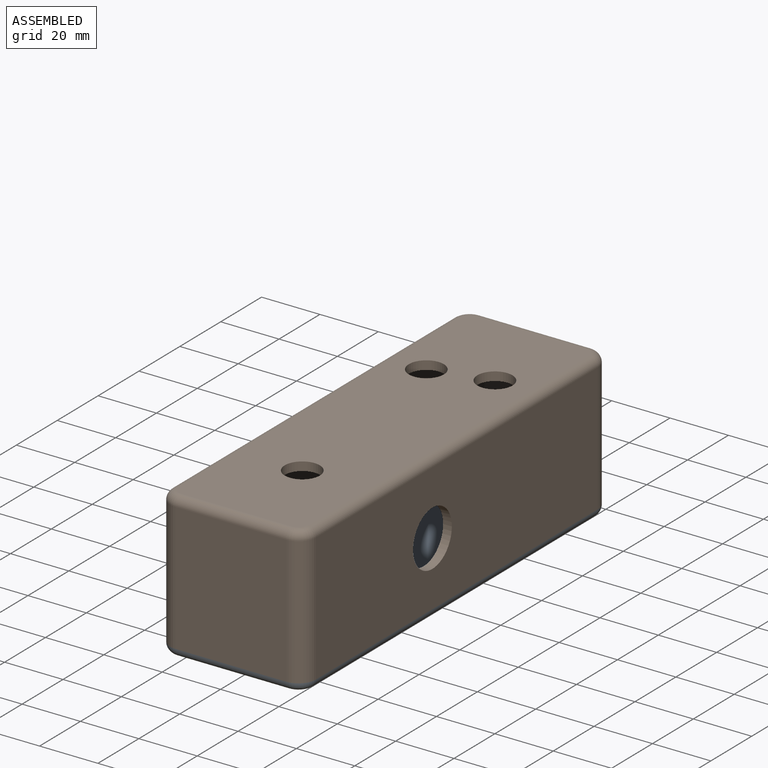
[diagram: assembled view]
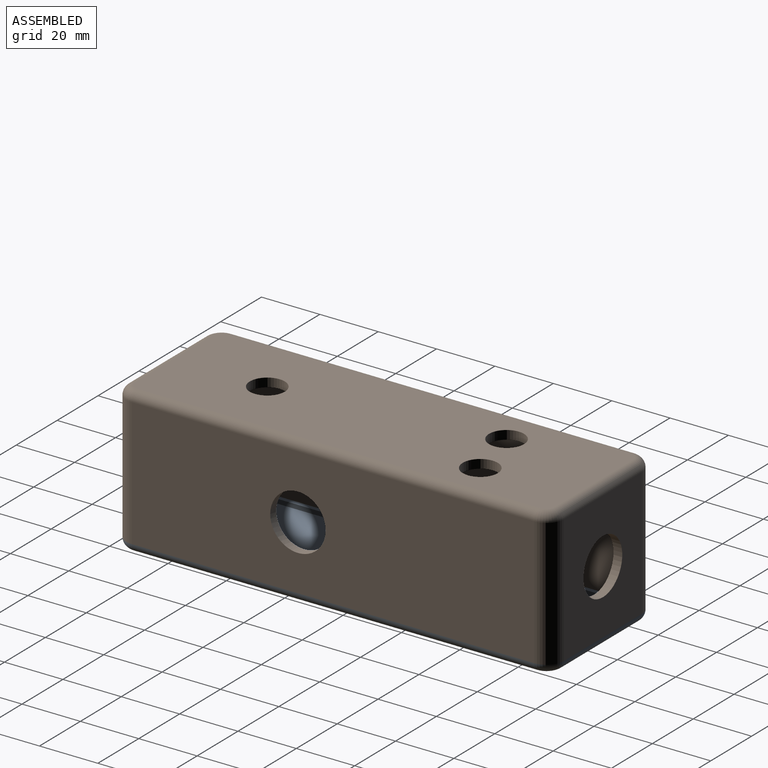
[diagram: assembled view, second angle]
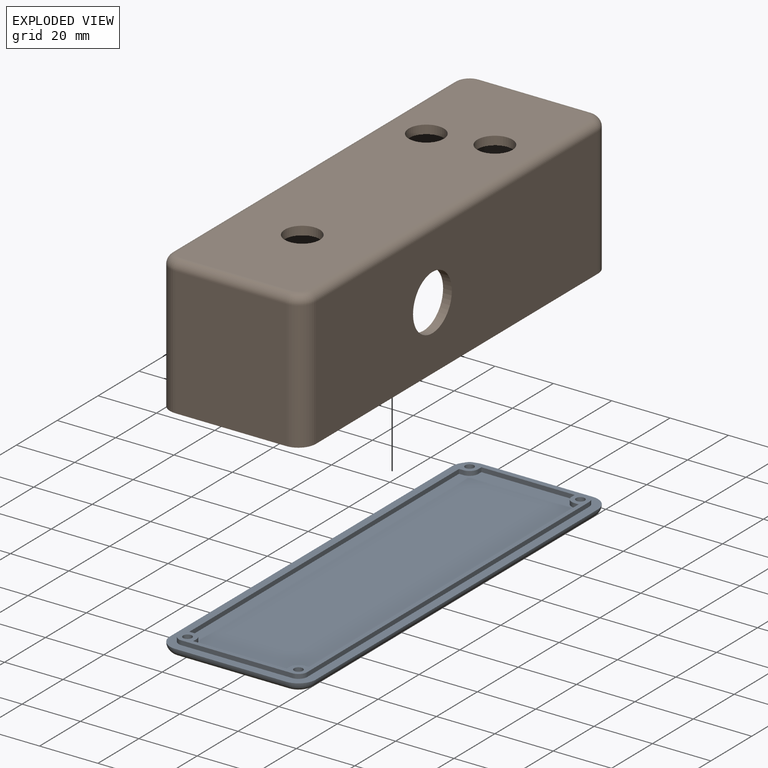
[diagram: exploded view]
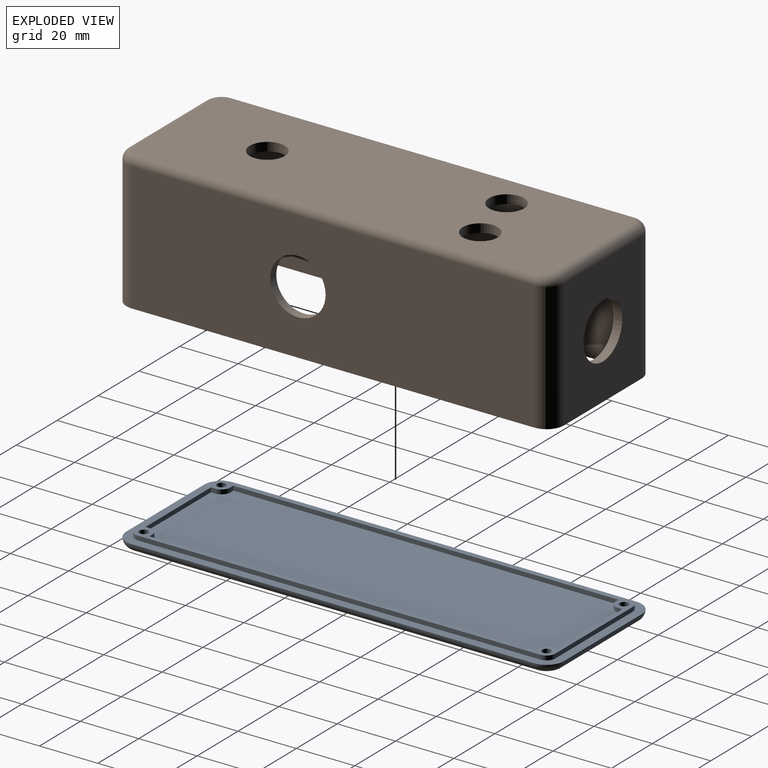
[diagram: exploded view, second angle]
ASSEMBLY  parts=2 mates=3
PART A: 40 faces, bbox 51x151x5.1 mm
  f0: cylinder r=1.5mm len=4.5mm, axis (0,0,1), area 42.4mm2, adj f4,f22
  f1: cylinder r=1.5mm len=4.5mm, axis (0,0,1), area 42.4mm2, adj f4,f22
  f2: cylinder r=1.5mm len=4.5mm, axis (0,0,1), area 42.4mm2, adj f4,f22
  f3: cylinder r=1.5mm len=4.5mm, axis (0,0,1), area 42.4mm2, adj f4,f22
  f4: plane 144x44mm, normal (0,0,-1), area 6300mm2, adj f0,f1,f2,f3,f28,f29,f30,f31
  f5: plane 150x50mm, normal (0,0,1), area 1140.8mm2, adj f6,f7,f8,f20,f24,f25,f26,f27
  f6: plane 138x1.5mm, normal (-1,0,0), area 207mm2, adj f5,f22,f24,f27
  f7: plane 38x1.5mm, normal (0,-1,0), area 57mm2, adj f5,f22,f26,f27
  f8: plane 138x1.5mm, normal (1,0,0), area 207mm2, adj f5,f22,f25,f26
  f9: plane 132x1.5mm, normal (1,0,0), area 198mm2, adj f10,f21,f22,f23
  f10: plane 1.5x1.5mm, normal (0,-1,0), area 2.3mm2, adj f9,f22,f23,f36
  f11: plane 1.5x1.5mm, normal (1,0,0), area 2.2mm2, adj f12,f22,f23,f36
  f12: plane 32x1.5mm, normal (0,-1,0), area 48mm2, adj f11,f13,f22,f23
  f13: plane 1.5x1.5mm, normal (-1,0,0), area 2.2mm2, adj f12,f22,f23,f37
  f14: plane 1.5x1.5mm, normal (0,-1,0), area 2.3mm2, adj f15,f22,f23,f37
  f15: plane 132x1.5mm, normal (-1,0,0), area 198mm2, adj f14,f16,f22,f23
  f16: plane 1.5x1.5mm, normal (0,1,0), area 2.3mm2, adj f15,f22,f23,f38
  f17: plane 1.5x1.5mm, normal (-1,0,0), area 2.2mm2, adj f18,f22,f23,f38
  f18: plane 32x1.5mm, normal (0,1,0), area 48mm2, adj f17,f19,f22,f23
  f19: plane 1.5x1.5mm, normal (1,0,0), area 2.2mm2, adj f18,f22,f23,f39
  f20: plane 38x1.5mm, normal (0,1,0), area 57mm2, adj f5,f22,f24,f25
  f21: plane 1.5x1.5mm, normal (0,1,0), area 2.3mm2, adj f9,f22,f23,f39
  f22: plane 144x44mm, normal (0,0,1), area 592.3mm2, adj f0,f1,f2,f3,f6,f7,f8,f9
  f23: plane 141x41mm, normal (0,0,1), area 5707.7mm2, adj f9,f10,f11,f12,f13,f14,f15,f16
  f24: cylinder r=3mm len=3mm, axis (0,0,1), area 7.1mm2, adj f5,f6,f20,f22
  f25: cylinder r=3mm len=3mm, axis (0,0,-1), area 7.1mm2, adj f5,f8,f20,f22
  f26: cylinder r=3mm len=3mm, axis (0,0,1), area 7.1mm2, adj f5,f7,f8,f22
  f27: cylinder r=3mm len=3mm, axis (0,0,-1), area 7.1mm2, adj f5,f6,f7,f22
  f28: cylinder r=3mm len=38mm, axis (-1,0,0), area 179.1mm2, adj f4,f5,f29,f30
  f29: torus R=3mm, axis (0,0,1), area 36.3mm2, adj f4,f5,f28,f31
  f30: torus R=3mm, axis (0,0,1), area 36.3mm2, adj f4,f5,f28,f32
  f31: cylinder r=3mm len=138mm, axis (0,1,0), area 650.3mm2, adj f4,f5,f29,f33
  f32: cylinder r=3mm len=138mm, axis (0,-1,0), area 650.3mm2, adj f4,f5,f30,f34
  f33: torus R=3mm, axis (0,0,1), area 36.3mm2, adj f4,f5,f31,f35
  f34: torus R=3mm, axis (0,0,1), area 36.3mm2, adj f4,f5,f32,f35
  f35: cylinder r=3mm len=38mm, axis (1,0,0), area 179.1mm2, adj f4,f5,f33,f34
  f36: cylinder r=3mm len=3mm, axis (0,0,-1), area 7.1mm2, adj f10,f11,f22,f23
  f37: cylinder r=3mm len=3mm, axis (0,0,-1), area 7.1mm2, adj f13,f14,f22,f23
  f38: cylinder r=3mm len=3mm, axis (0,0,-1), area 7.1mm2, adj f16,f17,f22,f23
  f39: cylinder r=3mm len=3mm, axis (0,0,-1), area 7.1mm2, adj f19,f21,f22,f23
PART B: 57 faces, bbox 51x151x47 mm
  f0: plane 44x38mm, normal (0,1,0), area 1417mm2, adj f2,f10,f23,f24,f26,f29,f39,f40
  f1: plane 138x44mm, normal (1,0,0), area 5533.5mm2, adj f2,f10,f16,f19,f21,f24,f33,f37
  f2: plane 144x44mm, normal (0,0,-1), area 5860.4mm2, adj f0,f1,f8,f9,f11,f12,f16,f18
  f3: plane 44x38mm, normal (0,1,0), area 1388.5mm2, adj f10,f31,f41,f44,f56
  f4: plane 138x44mm, normal (-1,0,0), area 5788.5mm2, adj f10,f33,f41,f42,f52
  f5: plane 44x38mm, normal (0,-1,0), area 1672mm2, adj f10,f42,f43,f49
  f6: plane 138x44mm, normal (1,0,0), area 5788.5mm2, adj f10,f32,f43,f44,f53
  f7: plane 144x44mm, normal (0,0,1), area 5989mm2, adj f34,f35,f36,f49,f50,f51,f52,f53
  f8: plane 44x38mm, normal (0,-1,0), area 1133.5mm2, adj f2,f10,f11,f14,f18,f19,f31,f37
  f9: plane 138x44mm, normal (-1,0,0), area 5533.5mm2, adj f2,f10,f12,f14,f28,f29,f32,f38
  f10: plane 150x50mm, normal (0,0,-1), area 1140.8mm2, adj f0,f1,f3,f4,f5,f6,f8,f9
  f11: plane 42.5x3mm, normal (-1,0,0), area 127.5mm2, adj f2,f8,f14,f47
  f12: plane 42.5x3mm, normal (0,-1,0), area 127.5mm2, adj f2,f9,f14,f47
  f13: cylinder r=1.5mm len=42.5mm, axis (0,0,1), area 400.6mm2, adj f14,f15
  f14: plane 6x6mm, normal (0,0,-1), area 25.1mm2, adj f8,f9,f11,f12,f13,f38,f47
  f15: plane 3x3mm, normal (0,0,-1), area 7.1mm2, adj f13
  f16: plane 42.5x3mm, normal (0,-1,0), area 127.5mm2, adj f1,f2,f19,f48
  f17: cylinder r=1.5mm len=42.5mm, axis (0,0,1), area 400.6mm2, adj f19,f20
  f18: plane 42.5x3mm, normal (1,0,0), area 127.5mm2, adj f2,f8,f19,f48
  f19: plane 6x6mm, normal (0,0,-1), area 25.1mm2, adj f1,f8,f16,f17,f18,f37,f48
  f20: plane 3x3mm, normal (0,0,-1), area 7.1mm2, adj f17
  f21: plane 42.5x3mm, normal (0,1,0), area 127.5mm2, adj f1,f2,f24,f45
  f22: cylinder r=1.5mm len=42.5mm, axis (0,0,1), area 400.6mm2, adj f24,f25
  f23: plane 42.5x3mm, normal (1,0,0), area 127.5mm2, adj f0,f2,f24,f45
  f24: plane 6x6mm, normal (0,0,-1), area 25.1mm2, adj f0,f1,f21,f22,f23,f40,f45
  f25: plane 3x3mm, normal (0,0,-1), area 7.1mm2, adj f22
  f26: plane 42.5x3mm, normal (-1,0,0), area 127.5mm2, adj f0,f2,f29,f46
  f27: cylinder r=1.5mm len=42.5mm, axis (0,0,1), area 400.6mm2, adj f29,f30
  f28: plane 42.5x3mm, normal (0,1,0), area 127.5mm2, adj f2,f9,f29,f46
  f29: plane 6x6mm, normal (0,0,-1), area 25.1mm2, adj f0,f9,f26,f27,f28,f39,f46
  f30: plane 3x3mm, normal (0,0,-1), area 7.1mm2, adj f27
  f31: cylinder r=9.5mm len=19mm, axis (0,1,0), area 179.1mm2, adj f3,f8
  f32: cylinder r=9.5mm len=19mm, axis (1,0,0), area 179.1mm2, adj f6,f9
  f33: cylinder r=9.5mm len=19mm, axis (-1,0,0), area 179.1mm2, adj f1,f4
  f34: cylinder r=6mm len=12mm, axis (0,0,1), area 113.1mm2, adj f2,f7
  f35: cylinder r=6mm len=12mm, axis (0,0,1), area 113.1mm2, adj f2,f7
  f36: cylinder r=6mm len=12mm, axis (0,0,1), area 113.1mm2, adj f2,f7
  f37: cylinder r=3mm len=3mm, axis (0,0,1), area 7.1mm2, adj f1,f8,f10,f19
  f38: cylinder r=3mm len=3mm, axis (0,0,-1), area 7.1mm2, adj f8,f9,f10,f14
  f39: cylinder r=3mm len=3mm, axis (0,0,1), area 7.1mm2, adj f0,f9,f10,f29
  f40: cylinder r=3mm len=3mm, axis (0,0,-1), area 7.1mm2, adj f0,f1,f10,f24
  f41: cylinder r=6mm len=44mm, axis (0,0,-1), area 414.7mm2, adj f3,f4,f10,f54
  f42: cylinder r=6mm len=44mm, axis (0,0,1), area 414.7mm2, adj f4,f5,f10,f50
  f43: cylinder r=6mm len=44mm, axis (0,0,-1), area 414.7mm2, adj f5,f6,f10,f51
  f44: cylinder r=6mm len=44mm, axis (0,0,1), area 414.7mm2, adj f3,f6,f10,f55
  f45: cylinder r=3mm len=42.5mm, axis (0,0,1), area 200.3mm2, adj f2,f21,f23,f24
  f46: cylinder r=3mm len=42.5mm, axis (0,0,1), area 200.3mm2, adj f2,f26,f28,f29
  f47: cylinder r=3mm len=42.5mm, axis (0,0,1), area 200.3mm2, adj f2,f11,f12,f14
  f48: cylinder r=3mm len=42.5mm, axis (0,0,1), area 200.3mm2, adj f2,f16,f18,f19
  f49: cylinder r=3mm len=38mm, axis (1,0,0), area 179.1mm2, adj f5,f7,f50,f51
  f50: torus R=3mm, axis (0,0,1), area 36.3mm2, adj f7,f42,f49,f52
  f51: torus R=3mm, axis (0,0,1), area 36.3mm2, adj f7,f43,f49,f53
  f52: cylinder r=3mm len=138mm, axis (0,-1,0), area 650.3mm2, adj f4,f7,f50,f54
  f53: cylinder r=3mm len=138mm, axis (0,1,0), area 650.3mm2, adj f6,f7,f51,f55
  f54: torus R=3mm, axis (0,0,1), area 36.3mm2, adj f7,f41,f52,f56
  f55: torus R=3mm, axis (0,0,1), area 36.3mm2, adj f7,f44,f53,f56
  f56: cylinder r=3mm len=38mm, axis (-1,0,0), area 179.1mm2, adj f3,f7,f54,f55
PLACE A t=(-0.02,0.03,-21.94)mm
PLACE B t=(-0.02,0.03,25.06)mm fixed
MATE cylindrical A.f0 <-> B.f22  axis (0,0,1) through (-19.02,-68.97,-22.69)mm
MATE cylindrical B.f17 <-> A.f3  axis (0,0,1) through (-19.02,69.03,0.81)mm
MATE planar B.f17 <-> A.f22  axis (0,0,-1) through (-19.02,69.03,-20.44)mm
